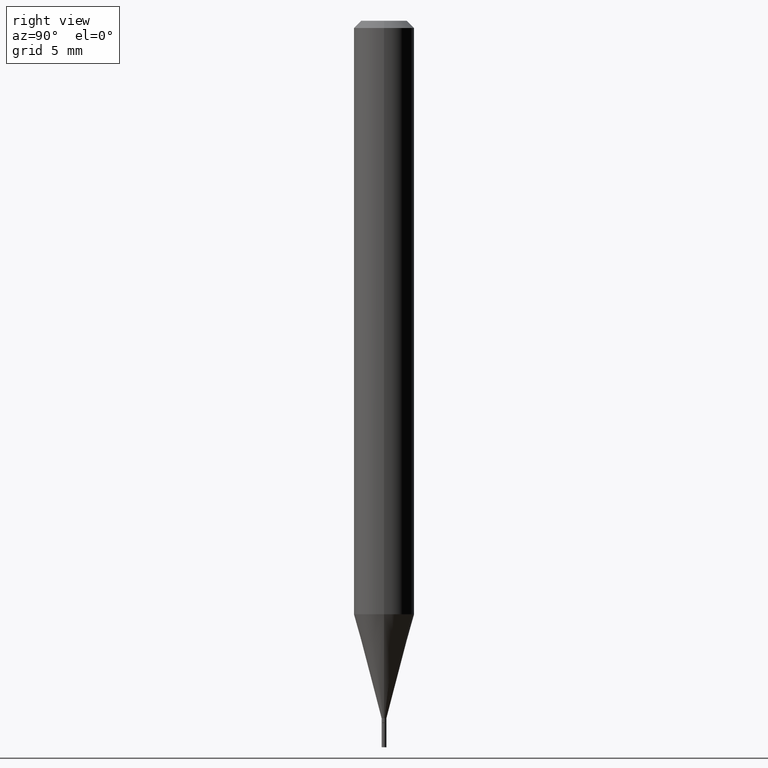
[diagram: clean part render]
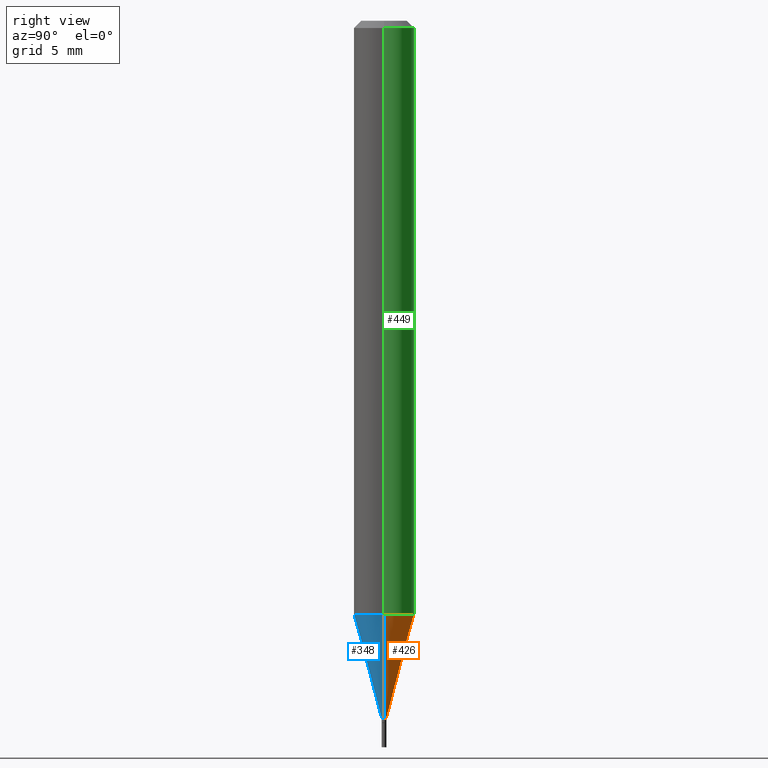
[diagram: same view with three faces highlighted in distinct colors, each labeled with its STEP entity id]
A machine part, right view with three faces highlighted in distinct colors.
Their STEP definitions:

[orange] entity #426 — the highlighted conical surface has half-angle 15 deg.
#2 = VERTEX_POINT ( 'NONE', #139 ) ;
#19 = DIRECTION ( 'NONE',  ( -0.2588190451025217387, 5.211531920934551042E-15, 0.9659258262890679791 ) ) ;
#20 = CARTESIAN_POINT ( 'NONE',  ( 3.521475080906597305E-29, -5.027733127934130649E-15, -1.440000000000000169 ) ) ;
#25 = ORIENTED_EDGE ( 'NONE', *, *, #107, .F. ) ;
#31 = ORIENTED_EDGE ( 'NONE', *, *, #263, .F. ) ;
#45 = DIRECTION ( 'NONE',  ( 1.000000000000000000, -6.982962677686262766E-15, 0.000000000000000000 ) ) ;
#69 = VERTEX_POINT ( 'NONE', #235 ) ;
#70 = CARTESIAN_POINT ( 'NONE',  ( 3.521475080906597305E-29, -5.027733127934130649E-15, -1.440000000000000169 ) ) ;
#81 = AXIS2_PLACEMENT_3D ( 'NONE', #70, #214, #437 ) ;
#98 = VERTEX_POINT ( 'NONE', #439 ) ;
#107 = EDGE_CURVE ( 'NONE', #2, #98, #231, .T. ) ;
#109 = DIRECTION ( 'NONE',  ( -2.445468806185136597E-29, 3.491481338843145583E-15, 1.000000000000000000 ) ) ;
#139 = CARTESIAN_POINT ( 'NONE',  ( 0.06250000000000000000, -4.714921114650650089E-15, -1.225407078564789254 ) ) ;
#169 = EDGE_LOOP ( 'NONE', ( #301, #394, #25, #31 ) ) ;
#172 = CIRCLE ( 'NONE', #81, 0.004999999999999647955 ) ;
#187 = DIRECTION ( 'NONE',  ( 0.2588190451025217387, 1.565188264969619207E-15, 0.9659258262890679791 ) ) ;
#194 = VECTOR ( 'NONE', #187, 39.37007874015748854 ) ;
#196 = FACE_OUTER_BOUND ( 'NONE', #169, .T. ) ;
#214 = DIRECTION ( 'NONE',  ( -2.445468806185136597E-29, 3.491481338843145583E-15, 1.000000000000000000 ) ) ;
#224 = AXIS2_PLACEMENT_3D ( 'NONE', #20, #298, #302 ) ;
#226 = CARTESIAN_POINT ( 'NONE',  ( -0.004999999999999647955, -4.992205991146127974E-15, -1.440000000000000169 ) ) ;
#231 = CIRCLE ( 'NONE', #353, 0.06250000000000000000 ) ;
#234 = LINE ( 'NONE', #226, #277 ) ;
#235 = CARTESIAN_POINT ( 'NONE',  ( 0.004999999999999647955, -5.062647941322559142E-15, -1.440000000000000169 ) ) ;
#250 = EDGE_CURVE ( 'NONE', #69, #272, #172, .T. ) ;
#263 = EDGE_CURVE ( 'NONE', #69, #2, #444, .T. ) ;
#272 = VERTEX_POINT ( 'NONE', #329 ) ;
#277 = VECTOR ( 'NONE', #19, 39.37007874015748854 ) ;
#290 = CARTESIAN_POINT ( 'NONE',  ( 2.996694785508651364E-29, -4.278485947295258420E-15, -1.225407078564789254 ) ) ;
#298 = DIRECTION ( 'NONE',  ( -2.445468806185136597E-29, 3.491481338843145583E-15, 1.000000000000000000 ) ) ;
#301 = ORIENTED_EDGE ( 'NONE', *, *, #250, .T. ) ;
#302 = DIRECTION ( 'NONE',  ( 1.000000000000000000, -6.982962677686242256E-15, 0.000000000000000000 ) ) ;
#329 = CARTESIAN_POINT ( 'NONE',  ( -0.004999999999999647955, -4.413301364295662283E-15, -1.440000000000000169 ) ) ;
#344 = EDGE_CURVE ( 'NONE', #272, #98, #234, .T. ) ;
#353 = AXIS2_PLACEMENT_3D ( 'NONE', #290, #109, #45 ) ;
#394 = ORIENTED_EDGE ( 'NONE', *, *, #344, .T. ) ;
#426 = ADVANCED_FACE ( 'NONE', ( #196 ), #455, .T. ) ;
#437 = DIRECTION ( 'NONE',  ( 1.000000000000000000, -6.982962677686242256E-15, 0.000000000000000000 ) ) ;
#439 = CARTESIAN_POINT ( 'NONE',  ( -0.06250000000000000000, -3.834396737445195804E-15, -1.225407078564789254 ) ) ;
#444 = LINE ( 'NONE', #448, #194 ) ;
#448 = CARTESIAN_POINT ( 'NONE',  ( 0.004999999999999647955, -5.062647941322559142E-15, -1.440000000000000169 ) ) ;
#455 = CONICAL_SURFACE ( 'NONE', #224, 0.004999999999999647955, 0.2617993877991504625 ) ;

[blue] entity #348 — the highlighted conical surface has half-angle 15 deg.
#2 = VERTEX_POINT ( 'NONE', #139 ) ;
#5 = CIRCLE ( 'NONE', #261, 0.004999999999999647955 ) ;
#15 = FACE_OUTER_BOUND ( 'NONE', #396, .T. ) ;
#19 = DIRECTION ( 'NONE',  ( -0.2588190451025217387, 5.211531920934551042E-15, 0.9659258262890679791 ) ) ;
#43 = ORIENTED_EDGE ( 'NONE', *, *, #344, .F. ) ;
#48 = DIRECTION ( 'NONE',  ( 1.000000000000000000, -6.982962677686242256E-15, 0.000000000000000000 ) ) ;
#69 = VERTEX_POINT ( 'NONE', #235 ) ;
#98 = VERTEX_POINT ( 'NONE', #439 ) ;
#127 = AXIS2_PLACEMENT_3D ( 'NONE', #150, #402, #283 ) ;
#139 = CARTESIAN_POINT ( 'NONE',  ( 0.06250000000000000000, -4.714921114650650089E-15, -1.225407078564789254 ) ) ;
#150 = CARTESIAN_POINT ( 'NONE',  ( 2.996694785508651364E-29, -4.278485947295258420E-15, -1.225407078564789254 ) ) ;
#154 = CARTESIAN_POINT ( 'NONE',  ( 3.521475080906597305E-29, -5.027733127934130649E-15, -1.440000000000000169 ) ) ;
#164 = AXIS2_PLACEMENT_3D ( 'NONE', #154, #296, #48 ) ;
#174 = ORIENTED_EDGE ( 'NONE', *, *, #238, .F. ) ;
#187 = DIRECTION ( 'NONE',  ( 0.2588190451025217387, 1.565188264969619207E-15, 0.9659258262890679791 ) ) ;
#194 = VECTOR ( 'NONE', #187, 39.37007874015748854 ) ;
#226 = CARTESIAN_POINT ( 'NONE',  ( -0.004999999999999647955, -4.992205991146127974E-15, -1.440000000000000169 ) ) ;
#234 = LINE ( 'NONE', #226, #277 ) ;
#235 = CARTESIAN_POINT ( 'NONE',  ( 0.004999999999999647955, -5.062647941322559142E-15, -1.440000000000000169 ) ) ;
#238 = EDGE_CURVE ( 'NONE', #98, #2, #400, .T. ) ;
#253 = ORIENTED_EDGE ( 'NONE', *, *, #263, .T. ) ;
#261 = AXIS2_PLACEMENT_3D ( 'NONE', #392, #276, #423 ) ;
#263 = EDGE_CURVE ( 'NONE', #69, #2, #444, .T. ) ;
#272 = VERTEX_POINT ( 'NONE', #329 ) ;
#276 = DIRECTION ( 'NONE',  ( -2.445468806185136597E-29, 3.491481338843145583E-15, 1.000000000000000000 ) ) ;
#277 = VECTOR ( 'NONE', #19, 39.37007874015748854 ) ;
#283 = DIRECTION ( 'NONE',  ( 1.000000000000000000, -6.982962677686262766E-15, 0.000000000000000000 ) ) ;
#291 = CONICAL_SURFACE ( 'NONE', #164, 0.004999999999999647955, 0.2617993877991504625 ) ;
#296 = DIRECTION ( 'NONE',  ( -2.445468806185136597E-29, 3.491481338843145583E-15, 1.000000000000000000 ) ) ;
#329 = CARTESIAN_POINT ( 'NONE',  ( -0.004999999999999647955, -4.413301364295662283E-15, -1.440000000000000169 ) ) ;
#344 = EDGE_CURVE ( 'NONE', #272, #98, #234, .T. ) ;
#348 = ADVANCED_FACE ( 'NONE', ( #15 ), #291, .T. ) ;
#350 = ORIENTED_EDGE ( 'NONE', *, *, #446, .T. ) ;
#392 = CARTESIAN_POINT ( 'NONE',  ( 3.521475080906597305E-29, -5.027733127934130649E-15, -1.440000000000000169 ) ) ;
#396 = EDGE_LOOP ( 'NONE', ( #43, #350, #253, #174 ) ) ;
#400 = CIRCLE ( 'NONE', #127, 0.06250000000000000000 ) ;
#402 = DIRECTION ( 'NONE',  ( -2.445468806185136597E-29, 3.491481338843145583E-15, 1.000000000000000000 ) ) ;
#423 = DIRECTION ( 'NONE',  ( 1.000000000000000000, -6.982962677686242256E-15, 0.000000000000000000 ) ) ;
#439 = CARTESIAN_POINT ( 'NONE',  ( -0.06250000000000000000, -3.834396737445195804E-15, -1.225407078564789254 ) ) ;
#444 = LINE ( 'NONE', #448, #194 ) ;
#446 = EDGE_CURVE ( 'NONE', #272, #69, #5, .T. ) ;
#448 = CARTESIAN_POINT ( 'NONE',  ( 0.004999999999999647955, -5.062647941322559142E-15, -1.440000000000000169 ) ) ;

[green] entity #449 — the highlighted cylindrical surface (edge-blend (fillet) strip) has radius 1.5875 mm, axis along (-0, 0, 1).
#2 = VERTEX_POINT ( 'NONE', #139 ) ;
#34 = VERTEX_POINT ( 'NONE', #142 ) ;
#42 = LINE ( 'NONE', #366, #246 ) ;
#45 = DIRECTION ( 'NONE',  ( 1.000000000000000000, -6.982962677686262766E-15, 0.000000000000000000 ) ) ;
#55 = VERTEX_POINT ( 'NONE', #121 ) ;
#64 = DIRECTION ( 'NONE',  ( 1.000000000000000000, -6.982962677686266711E-15, 4.876176775795935793E-29 ) ) ;
#88 = AXIS2_PLACEMENT_3D ( 'NONE', #260, #299, #408 ) ;
#95 = ORIENTED_EDGE ( 'NONE', *, *, #335, .F. ) ;
#98 = VERTEX_POINT ( 'NONE', #439 ) ;
#107 = EDGE_CURVE ( 'NONE', #2, #98, #231, .T. ) ;
#109 = DIRECTION ( 'NONE',  ( -2.445468806185136597E-29, 3.491481338843145583E-15, 1.000000000000000000 ) ) ;
#115 = DIRECTION ( 'NONE',  ( -2.445468806185136877E-29, 3.491481338843145188E-15, 1.000000000000000000 ) ) ;
#121 = CARTESIAN_POINT ( 'NONE',  ( 0.06250000000000000000, -4.888073874380388472E-16, -0.01499999999999999944 ) ) ;
#136 = ORIENTED_EDGE ( 'NONE', *, *, #188, .T. ) ;
#139 = CARTESIAN_POINT ( 'NONE',  ( 0.06250000000000000000, -4.714921114650650089E-15, -1.225407078564789254 ) ) ;
#142 = CARTESIAN_POINT ( 'NONE',  ( -0.06250000000000000000, -1.721339873838890133E-15, -0.01499999999999999944 ) ) ;
#175 = CARTESIAN_POINT ( 'NONE',  ( -0.06250000000000000000, 4.440892098500626162E-16, -3.074334431409316114E-30 ) ) ;
#188 = EDGE_CURVE ( 'NONE', #98, #34, #217, .T. ) ;
#211 = EDGE_CURVE ( 'NONE', #2, #55, #42, .T. ) ;
#215 = ORIENTED_EDGE ( 'NONE', *, *, #107, .T. ) ;
#217 = LINE ( 'NONE', #175, #219 ) ;
#219 = VECTOR ( 'NONE', #401, 39.37007874015748143 ) ;
#231 = CIRCLE ( 'NONE', #353, 0.06250000000000000000 ) ;
#233 = CIRCLE ( 'NONE', #88, 0.06250000000000000000 ) ;
#240 = AXIS2_PLACEMENT_3D ( 'NONE', #309, #390, #64 ) ;
#242 = CYLINDRICAL_SURFACE ( 'NONE', #240, 0.06250000000000000000 ) ;
#246 = VECTOR ( 'NONE', #115, 39.37007874015748143 ) ;
#260 = CARTESIAN_POINT ( 'NONE',  ( 3.668203209277705088E-31, -5.237222008264718399E-17, -0.01499999999999999944 ) ) ;
#287 = EDGE_LOOP ( 'NONE', ( #215, #136, #95, #356 ) ) ;
#290 = CARTESIAN_POINT ( 'NONE',  ( 2.996694785508651364E-29, -4.278485947295258420E-15, -1.225407078564789254 ) ) ;
#299 = DIRECTION ( 'NONE',  ( -2.445468806185136597E-29, 3.491481338843145583E-15, 1.000000000000000000 ) ) ;
#309 = CARTESIAN_POINT ( 'NONE',  ( 0.000000000000000000, 0.000000000000000000, 0.000000000000000000 ) ) ;
#335 = EDGE_CURVE ( 'NONE', #55, #34, #233, .T. ) ;
#351 = FACE_OUTER_BOUND ( 'NONE', #287, .T. ) ;
#353 = AXIS2_PLACEMENT_3D ( 'NONE', #290, #109, #45 ) ;
#356 = ORIENTED_EDGE ( 'NONE', *, *, #211, .F. ) ;
#366 = CARTESIAN_POINT ( 'NONE',  ( 0.06250000000000000000, -4.364351673553916694E-16, 3.047610484872459871E-30 ) ) ;
#390 = DIRECTION ( 'NONE',  ( -2.445468806185136597E-29, 3.491481338843145583E-15, 1.000000000000000000 ) ) ;
#401 = DIRECTION ( 'NONE',  ( -2.445468806185136877E-29, 3.491481338843145188E-15, 1.000000000000000000 ) ) ;
#408 = DIRECTION ( 'NONE',  ( 1.000000000000000000, -6.982962677686266711E-15, 0.000000000000000000 ) ) ;
#439 = CARTESIAN_POINT ( 'NONE',  ( -0.06250000000000000000, -3.834396737445195804E-15, -1.225407078564789254 ) ) ;
#449 = ADVANCED_FACE ( 'NONE', ( #351 ), #242, .T. ) ;